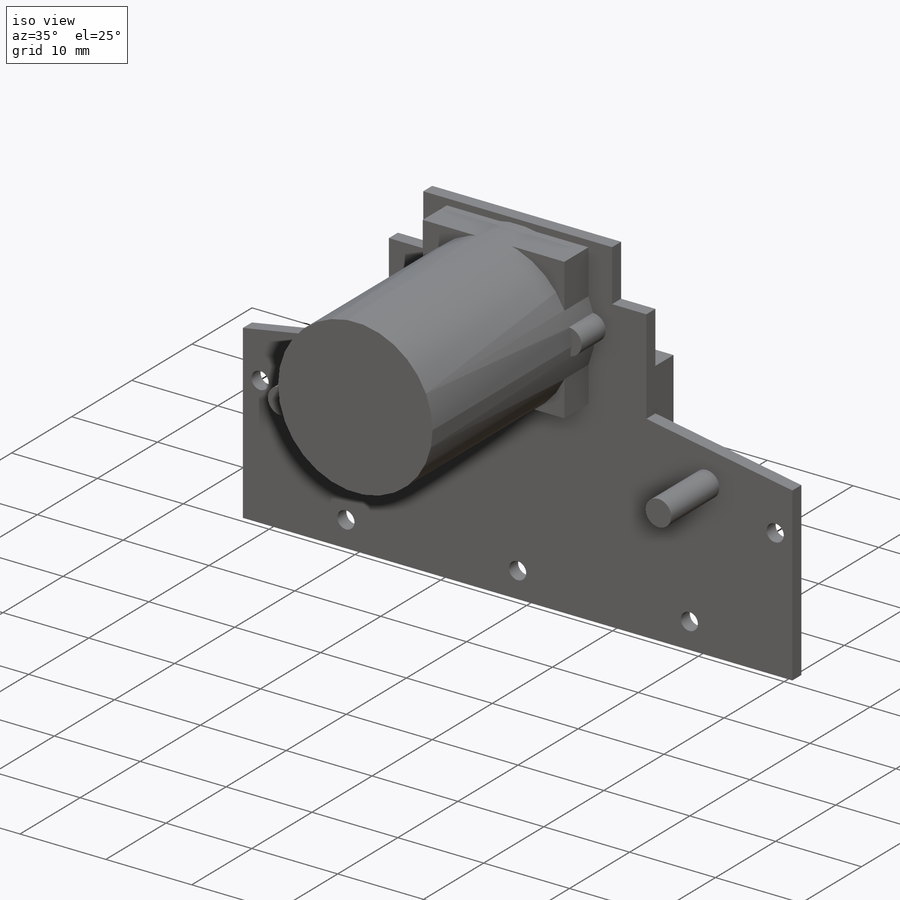
[diagram: iso view]
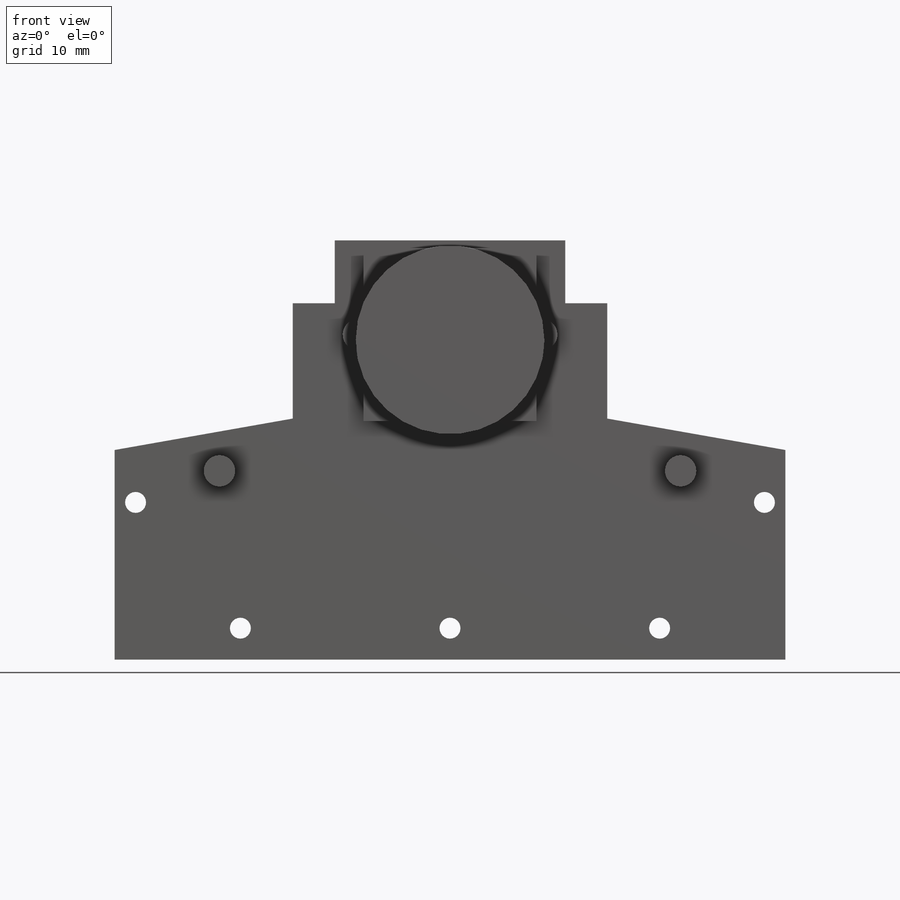
[diagram: front view]
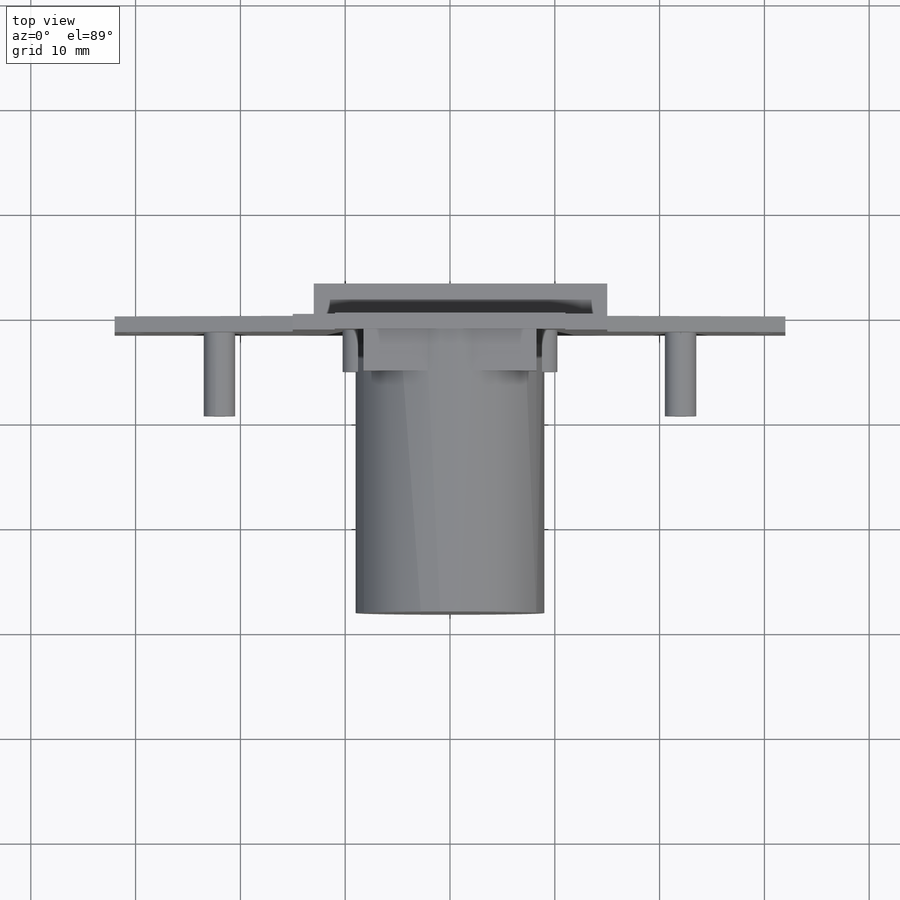
[diagram: top view]
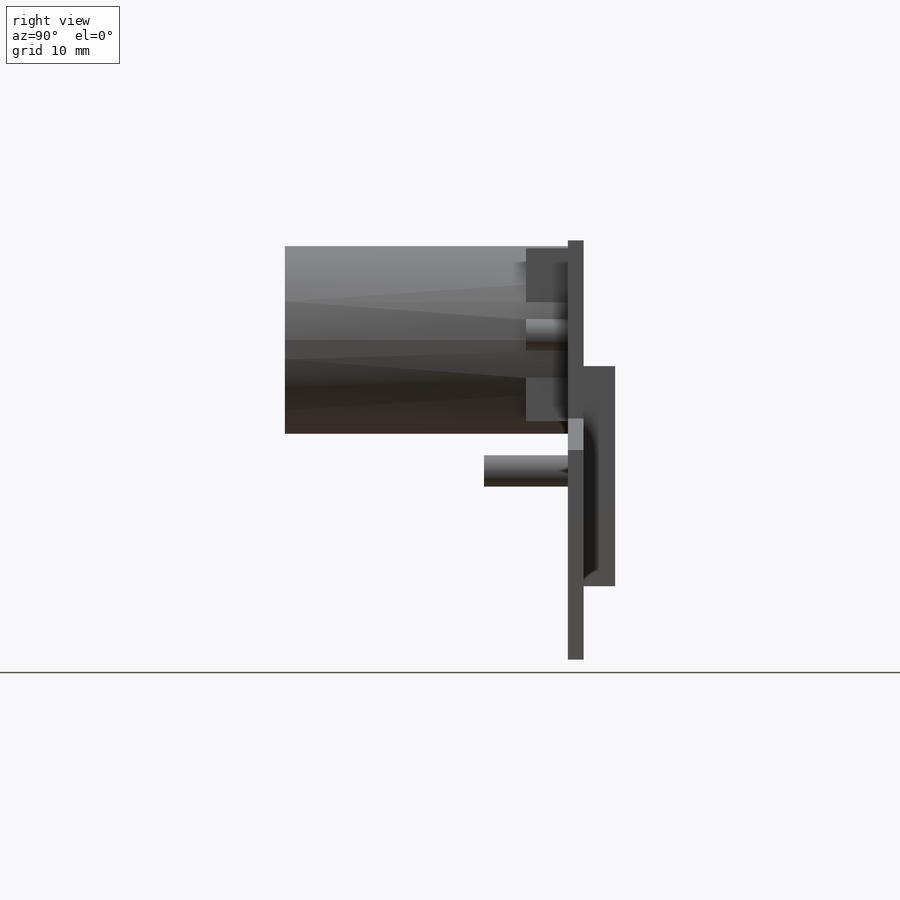
[diagram: right view]
SOLIDWORKS PART (.sldprt)
format: sldprt  version: not decoded by parser v0  size: 305,152 bytes
history: native  units: mm
features: sketch x7, extrude x5, material x1, cut_extrude x1 (+16 scaffold rows collapsed)
feature tree (30):
  scaffold x16  (default folders/planes/origin — collapsed)
  material  "Nickel"
  sketch  "Sketch1"  dims[D1=64.0mm D2=23.0mm D3=30.0mm D4=20.0mm D5=11.0mm D6=6.0mm D7=22.0mm D8=6.5mm]
  extrude  "Boss-Extrude1"  Depth=1.5mm
  sketch  "Sketch2"  dims[c1.D3=2.0mm c1.D7=~3.499492mm c1.D1=40.0mm c1.D2=3.0mm c1.D4=12.0mm c1.D5=10.0mm c1.D6=2.0mm c2.D5=15.0mm c2.D7=0.5mm c2.D4=1.5mm]
  cut_extrude  "Cut-Extrude1"  Depth=5mm
  sketch  "Sketch3"  dims[D1=18.0mm D2=17.0mm D3=17.0mm D4=1.0mm]
  extrude  "Boss-Extrude2"  Depth=27mm
  sketch  "Sketch4"
  sketch  "Sketch5"  dims[D1=28.0mm D2=19.0mm D3=30.0mm D4=7.0mm]
  extrude  "Boss-Extrude3"  Depth=3mm
  sketch  "Sketch6"  dims[D2=3.0mm D1=44.0mm D3=18.0mm]
  extrude  "Boss-Extrude4"  Depth=8mm
  sketch  "Sketch7"  dims[D3=3.0mm D1=16.5mm D2=2.0mm]
  extrude  "Boss-Extrude5"  Depth=4mm
decode coverage: 12 of 13 modeling features carry decoded parameters
note: ~ marks probable driven/reference dimensions
note: suppression state not decoded; provenance and decode notes live in map.json
